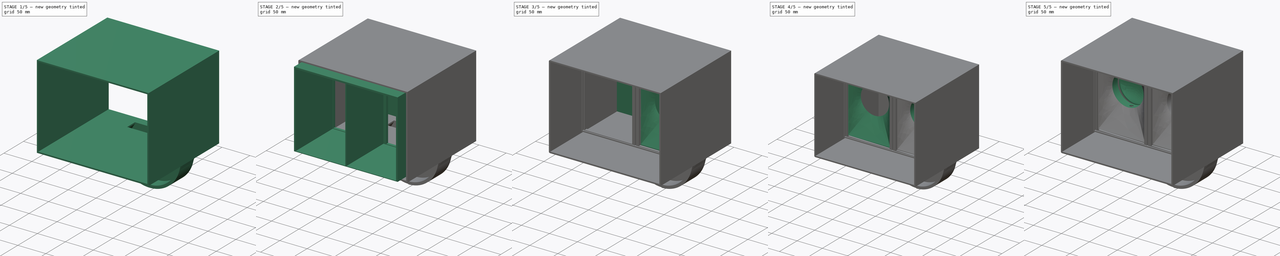
[diagram: build sequence overview — one tinted view per stage of 5, left to right]
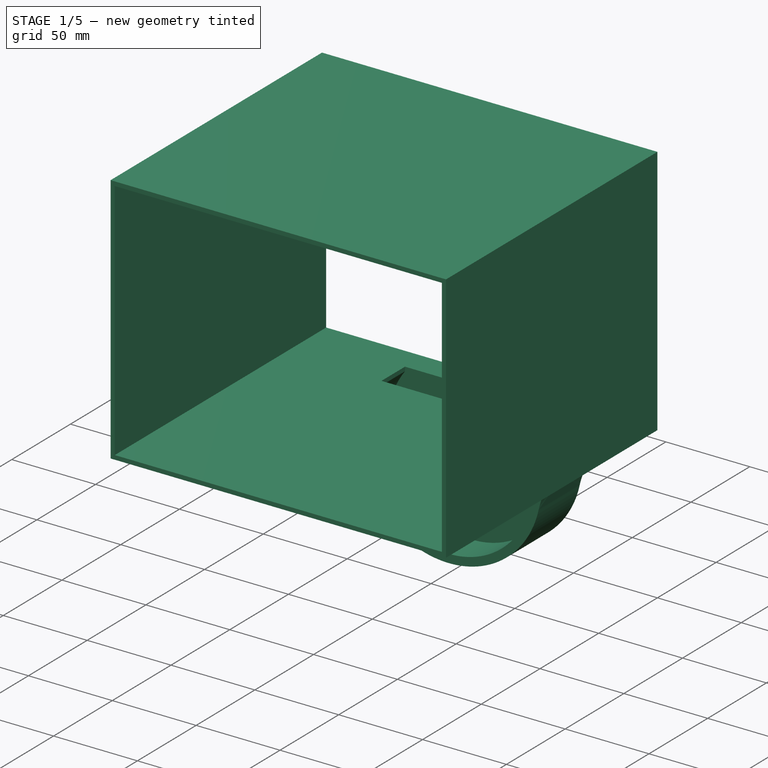
[diagram: stage 1 of 5 — iso view after this stage's code; geometry added in this stage tinted green]
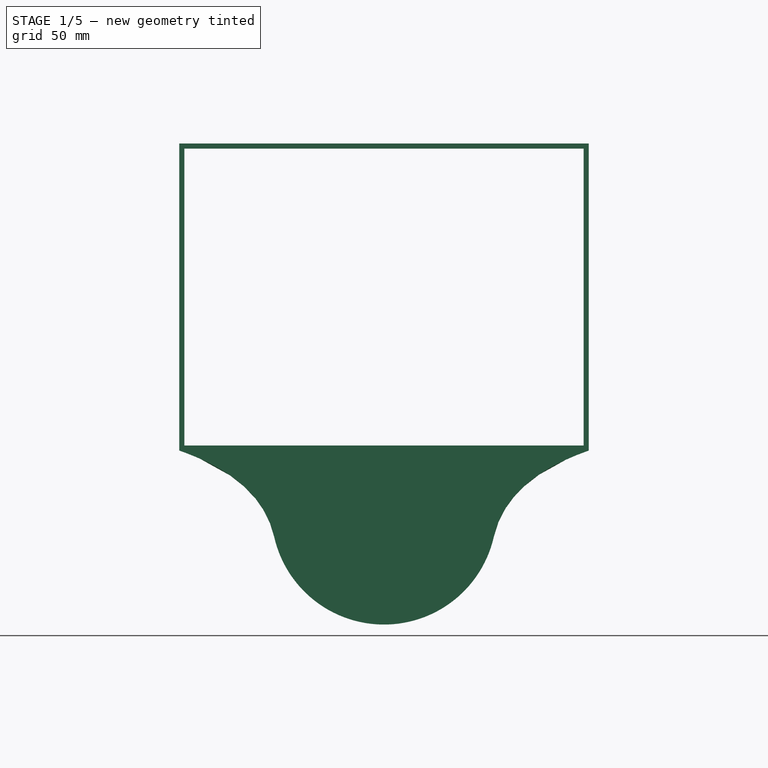
[diagram: stage 1 of 5 — front view after this stage's code; geometry added in this stage tinted green]
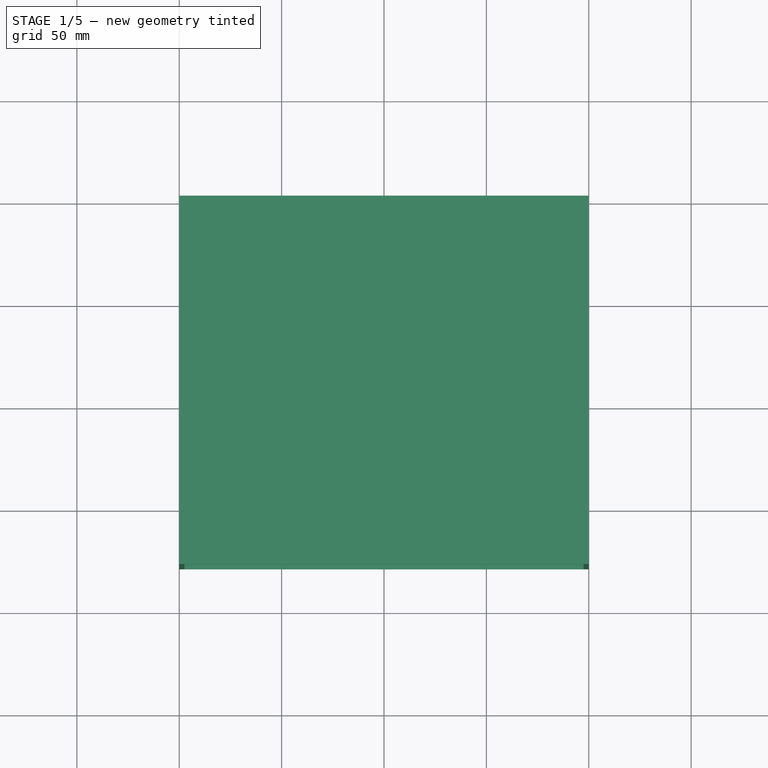
[diagram: stage 1 of 5 — top view after this stage's code; geometry added in this stage tinted green]
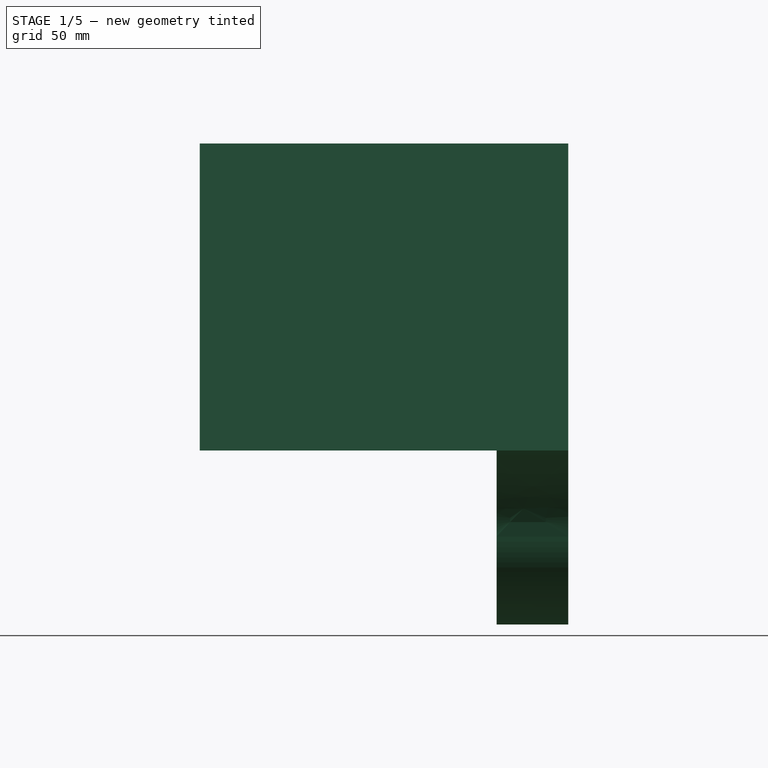
[diagram: stage 1 of 5 — right view after this stage's code; geometry added in this stage tinted green]
FCSTD DOCUMENT  (FreeCAD 0.17R13541 (Git))
Label: OuterComedero
License: All rights reserved
LicenseURL: http://en.wikipedia.org/wiki/All_rights_reserved
objects: Sketcher::SketchObject×30, Part::Extrusion×12, Part::Cut×9, Part::Loft×4, Part::MultiFuse×3, PartDesign::Body×2, Part::Sweep×2, Part::Box×1, Part::FeaturePython×1, Part::Fillet×1
note: 65 computed .brp shape members not serialized (recipe doc carries the construction recipe); baked Part::Feature solids carry a one-line shape summary decoded from their .brp

FEATURE [Sketcher::SketchObject] Sketch  label="paredCom"
  MapMode = 5
  Placement = pos=(0,0,0) rot=(1,0,0;1.5708rad)
  Support = -> [XZ_Plane]
  sketch-geometry (10):
    g0: LineSegment StartX=0 StartY=0 StartZ=0 EndX=200 EndY=0 EndZ=0
    g1: LineSegment StartX=200 StartY=0 StartZ=0 EndX=200 EndY=-150 EndZ=0
    g2: LineSegment StartX=200 StartY=-150 StartZ=0 EndX=0 EndY=-150 EndZ=0
    g3: LineSegment StartX=0 StartY=-150 StartZ=0 EndX=0 EndY=0 EndZ=0
    g4: LineSegment [constr] StartX=100 StartY=0 StartZ=0 EndX=100 EndY=-150 EndZ=0
    g5: LineSegment [constr] StartX=0 StartY=-75 StartZ=0 EndX=200 EndY=-75 EndZ=0
    g6: LineSegment StartX=2.5 StartY=-2.5 StartZ=0 EndX=197.5 EndY=-2.5 EndZ=0
    g7: LineSegment StartX=197.5 StartY=-2.5 StartZ=0 EndX=197.5 EndY=-147.5 EndZ=0
    g8: LineSegment StartX=197.5 StartY=-147.5 StartZ=0 EndX=2.5 EndY=-147.5 EndZ=0
    g9: LineSegment StartX=2.5 StartY=-147.5 StartZ=0 EndX=2.5 EndY=-2.5 EndZ=0
  constraints (31):
    c: Coincident(g0,g1)
    c: Coincident(g1,g2)
    c: Coincident(g2,g3)
    c: Coincident(g3,g0)
    c: Horizontal(g0)
    c: Horizontal(g2)
    c: Vertical(g1)
    c: Vertical(g3)
    c: Coincident(g0,g-1)
    c: DistanceY(g1,g1) = 150
    c: DistanceX(g0,g0) = 200
    c: PointOnObject(g4,g0)
    c: PointOnObject(g4,g2)
    c: Vertical(g4)
    c: DistanceX(g-1,g4) = 100
    c: PointOnObject(g5,g3)
    c: PointOnObject(g5,g1)
    c: Horizontal(g5)
    c: DistanceY(g5,g-1) = 75
    c: Coincident(g6,g7)
    c: Coincident(g7,g8)
    c: Coincident(g8,g9)
    c: Coincident(g9,g6)
    c: Horizontal(g6)
    c: Horizontal(g8)
    c: Vertical(g7)
    c: Vertical(g9)
    c: Symmetric(g6,g7,g5)
    c: Symmetric(g6,g6,g4)
    c: DistanceY(g9,g9) = 145
    c: DistanceX(g6,g6) = 195
FEATURE [Sketcher::SketchObject] Sketch001
  MapMode = 5
  Placement = pos=(0,0,0) rot=(1,0,0;1.5708rad)
  Support = -> [XZ_Plane]
  sketch-geometry (17):
    g0: LineSegment StartX=0 StartY=0 StartZ=0 EndX=200 EndY=0 EndZ=0
    g1: LineSegment StartX=200 StartY=0 StartZ=0 EndX=200 EndY=-150 EndZ=0
    g2: LineSegment StartX=0 StartY=-150 StartZ=0 EndX=0 EndY=0 EndZ=0
    g3: ArcOfCircle CenterX=100 CenterY=-180 CenterZ=0 NormalX=0 NormalY=0 NormalZ=1 AngleXU=0 Radius=55 StartAngle=3.36154 EndAngle=6.06323
    g4: Circle [constr] CenterX=200 CenterY=-150 CenterZ=0 NormalX=0 NormalY=0 NormalZ=1 AngleXU=0 Radius=5
    g5: Circle [constr] CenterX=160 CenterY=-164 CenterZ=0 NormalX=0 NormalY=0 NormalZ=1 AngleXU=0 Radius=5
    g6: Circle [constr] CenterX=153.675 CenterY=-192 CenterZ=0 NormalX=0 NormalY=0 NormalZ=1 AngleXU=0 Radius=5
    g7: BSplineCurve PolesCount=3 KnotsCount=2 Degree=2 IsPeriodic=0
    g8: GeomPoint [constr] X=200 Y=-150 Z=0
    g9: GeomPoint [constr] X=153.675 Y=-192 Z=0
    g10: Circle [constr] CenterX=46.3251 CenterY=-192 CenterZ=0 NormalX=0 NormalY=0 NormalZ=1 AngleXU=0 Radius=4
    g11: Circle [constr] CenterX=40 CenterY=-164 CenterZ=0 NormalX=0 NormalY=0 NormalZ=1 AngleXU=0 Radius=4
    g12: Circle [constr] CenterX=0 CenterY=-150 CenterZ=0 NormalX=0 NormalY=0 NormalZ=1 AngleXU=0 Radius=4
    g13: BSplineCurve PolesCount=3 KnotsCount=2 Degree=2 IsPeriodic=0
    g14: GeomPoint [constr] X=46.3251 Y=-192 Z=0
    g15: GeomPoint [constr] X=0 Y=-150 Z=0
    g16: LineSegment [constr] StartX=100 StartY=-55.3795 StartZ=0 EndX=100 EndY=-177.313 EndZ=0
  constraints (39):
    c: Coincident(g0,g1)
    c: Coincident(g2,g0)
    c: Horizontal(g0)
    c: Vertical(g1)
    c: Vertical(g2)
    c: Coincident(g0,g-1)
    c: DistanceX(g0,g0) = 200
    c: DistanceY(g2,g2) = 150
    c: DistanceX(g-1,g3) = 100
    c: Radius(g3) = 55
    c: DistanceY(g3,g-1) = 180
    c: Coincident(g4,g1)
    c: Radius(g4) = 5
    c: Equal(g4,g5)
    c: Equal(g4,g6)
    c: InternalAlignment(g4,g7)
    c: InternalAlignment(g5,g7)
    c: InternalAlignment(g6,g7)
    c: InternalAlignment(g8,g7)
    c: InternalAlignment(g9,g7)
    c: Radius(g10) = 4
    c: Equal(g10,g11)
    c: Equal(g10,g12)
    c: Coincident(g12,g2)
    c: InternalAlignment(g10,g13)
    c: InternalAlignment(g11,g13)
    c: InternalAlignment(g12,g13)
    c: InternalAlignment(g14,g13)
    c: InternalAlignment(g15,g13)
    c: DistanceX(g5,g1) = 40
    c: Vertical(g16)
    c: DistanceX(g-1,g16) = 100
    c: Symmetric(g5,g11,g16)
    c: Coincident(g3,g10)
    c: Coincident(g3,g6)
    c: DistanceY(g5,g1) = 14
    c: DistanceY(g11,g2) = 14
    c: DistanceY(g3,g2) = 42
    c: DistanceY(g3,g1) = 42
FEATURE [Part::Extrusion] Extrude
  Base = -> Sketch
  Dir = (0,-1,0)
  DirMode = 2
  FaceMakerClass = Part::FaceMakerBullseye
  LengthFwd = 180
  LengthRev = 0
  Solid = true
  Symmetric = false
FEATURE [Sketcher::SketchObject] Sketch003
  MapMode = 5
  Placement = pos=(0,0,0) rot=(1,0,0;1.5708rad)
  Support = -> [XZ_Plane]
  expr: Constraints[2] = Sketch001.Constraints[12]
  expr: Constraints[24] = Sketch001.Constraints[38]
  expr: Constraints[21] = Sketch001.Constraints[35]
  expr: Constraints[22] = Sketch001.Constraints[36]
  expr: Constraints[0] = Sketch001.Constraints[8]
  expr: Constraints[23] = Sketch001.Constraints[37]
  expr: Constraints[10] = Sketch001.Constraints[20]
  expr: Constraints[1] = Sketch001.Constraints[9]
  expr: Constraints[18] = Sketch001.Constraints[29]
  sketch-geometry (14):
    g0: LineSegment StartX=0 StartY=-150 StartZ=0 EndX=200 EndY=-150 EndZ=0
    g1: ArcOfCircle CenterX=100 CenterY=-180 CenterZ=0 NormalX=0 NormalY=0 NormalZ=1 AngleXU=0 Radius=55 StartAngle=3.36154 EndAngle=6.06323
    g2: Circle [constr] CenterX=200 CenterY=-150 CenterZ=0 NormalX=0 NormalY=0 NormalZ=1 AngleXU=0 Radius=5
    g3: Circle [constr] CenterX=160 CenterY=-164 CenterZ=0 NormalX=0 NormalY=0 NormalZ=1 AngleXU=0 Radius=5
    g4: Circle [constr] CenterX=153.675 CenterY=-192 CenterZ=0 NormalX=0 NormalY=0 NormalZ=1 AngleXU=0 Radius=5
    g5: BSplineCurve PolesCount=3 KnotsCount=2 Degree=2 IsPeriodic=0
    g6: GeomPoint [constr] X=200 Y=-150 Z=0
    g7: GeomPoint [constr] X=153.675 Y=-192 Z=0
    g8: Circle [constr] CenterX=46.3251 CenterY=-192 CenterZ=0 NormalX=0 NormalY=0 NormalZ=1 AngleXU=0 Radius=4
    g9: Circle [constr] CenterX=40 CenterY=-164 CenterZ=0 NormalX=0 NormalY=0 NormalZ=1 AngleXU=0 Radius=4
    g10: Circle [constr] CenterX=0 CenterY=-150 CenterZ=0 NormalX=0 NormalY=0 NormalZ=1 AngleXU=0 Radius=4
    g11: BSplineCurve PolesCount=3 KnotsCount=2 Degree=2 IsPeriodic=0
    g12: GeomPoint [constr] X=46.3251 Y=-192 Z=0
    g13: GeomPoint [constr] X=0 Y=-150 Z=0
  constraints (25):
    c: DistanceX(g-1,g1) = 100
    c: Radius(g1) = 55
    c: Radius(g2) = 5
    c: Equal(g2,g3)
    c: Equal(g2,g4)
    c: InternalAlignment(g2,g5)
    c: InternalAlignment(g3,g5)
    c: InternalAlignment(g4,g5)
    c: InternalAlignment(g6,g5)
    c: InternalAlignment(g7,g5)
    c: Radius(g8) = 4
    c: Equal(g8,g9)
    c: Equal(g8,g10)
    c: InternalAlignment(g8,g11)
    c: InternalAlignment(g9,g11)
    c: InternalAlignment(g10,g11)
    c: InternalAlignment(g12,g11)
    c: InternalAlignment(g13,g11)
    c: DistanceX(g3,g2) = 40
    c: Coincident(g1,g8)
    c: Coincident(g1,g4)
    c: DistanceY(g3,g2) = 14
    c: DistanceY(g9,g10) = 14
    c: DistanceY(g1,g10) = 42
    c: DistanceY(g1,g2) = 42
FEATURE [Part::Extrusion] Extrude002
  Base = -> Sketch003
  Dir = (0,-1,0)
  DirMode = 2
  FaceMakerClass = Part::FaceMakerBullseye
  LengthFwd = 35
  LengthRev = 0
  Solid = true
  Symmetric = false
FEATURE [Part::Extrusion] Extrude004
  Base = -> Sketch002
  Dir = (0,-1,0)
  DirMode = 2
  FaceMakerClass = Part::FaceMakerBullseye
  LengthFwd = 20
  LengthRev = 0
  Placement = pos=(0,-15,0) rot=(0,0,1;0rad)
  Solid = true
  Symmetric = false
FEATURE [Part::Cut] Cut
  Base = -> Extrude002
  Tool = -> Extrude004
FEATURE [Sketcher::SketchObject] Sketch004  label="BoolComida"
  AttachmentOffset = pos=(0,0,-147.5) rot=(0,0,1;0rad)
  MapMode = 5
  Placement = pos=(0,0,-147.5) rot=(0,0,1;0rad)
  Support = -> [XY_Plane]
  sketch-geometry (4):
    g0: LineSegment StartX=60 StartY=-35 StartZ=0 EndX=140 EndY=-35 EndZ=0
    g1: LineSegment StartX=140 StartY=-35 StartZ=0 EndX=140 EndY=-15 EndZ=0
    g2: LineSegment StartX=140 StartY=-15 StartZ=0 EndX=60 EndY=-15 EndZ=0
    g3: LineSegment StartX=60 StartY=-15 StartZ=0 EndX=60 EndY=-35 EndZ=0
  constraints (12):
    c: Coincident(g0,g1)
    c: Coincident(g1,g2)
    c: Coincident(g2,g3)
    c: Coincident(g3,g0)
    c: Horizontal(g0)
    c: Horizontal(g2)
    c: Vertical(g1)
    c: Vertical(g3)
    c: DistanceY(g0,g-1) = 35
    c: DistanceX(g-1,g0) = 60
    c: DistanceX(g0,g0) = 80
    c: DistanceY(g3,g3) = 20
FEATURE [Part::Extrusion] Extrude005
  Base = -> Sketch004
  Dir = (0,0,1)
  DirMode = 2
  FaceMakerClass = Part::FaceMakerBullseye
  LengthFwd = 20
  LengthRev = 0
  Placement = pos=(0,0,-6) rot=(0,0,1;0rad)
  Solid = true
  Symmetric = false
FEATURE [Part::Cut] Cut001
  Base = -> Extrude
  Tool = -> Extrude005
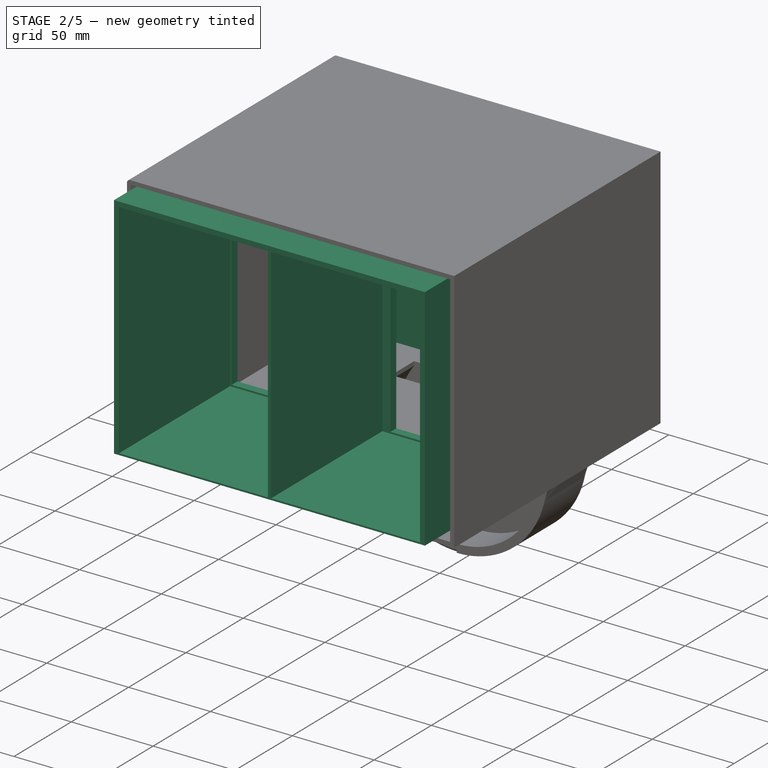
[diagram: stage 2 of 5 — iso view after this stage's code; geometry added in this stage tinted green]
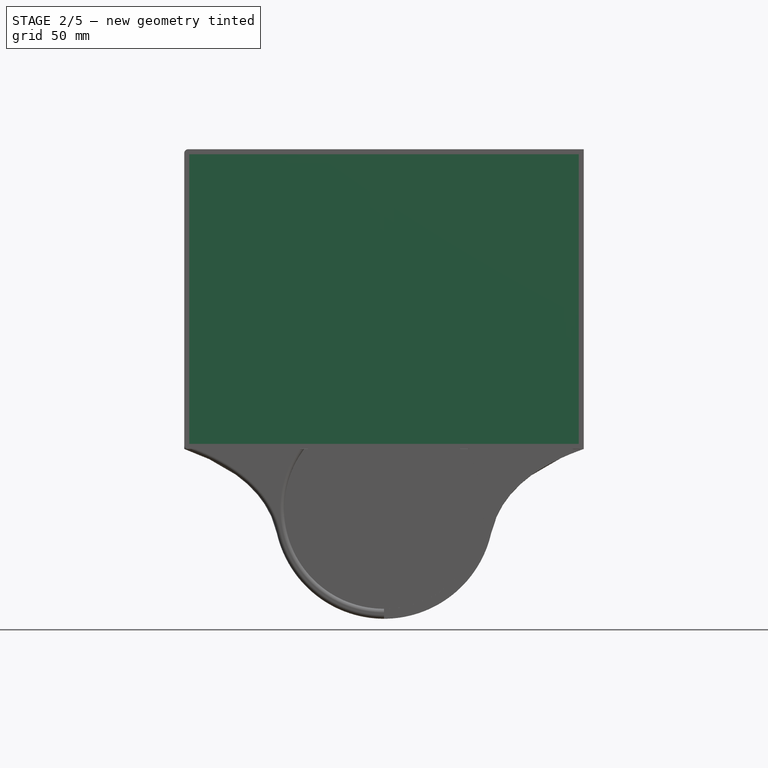
[diagram: stage 2 of 5 — front view after this stage's code; geometry added in this stage tinted green]
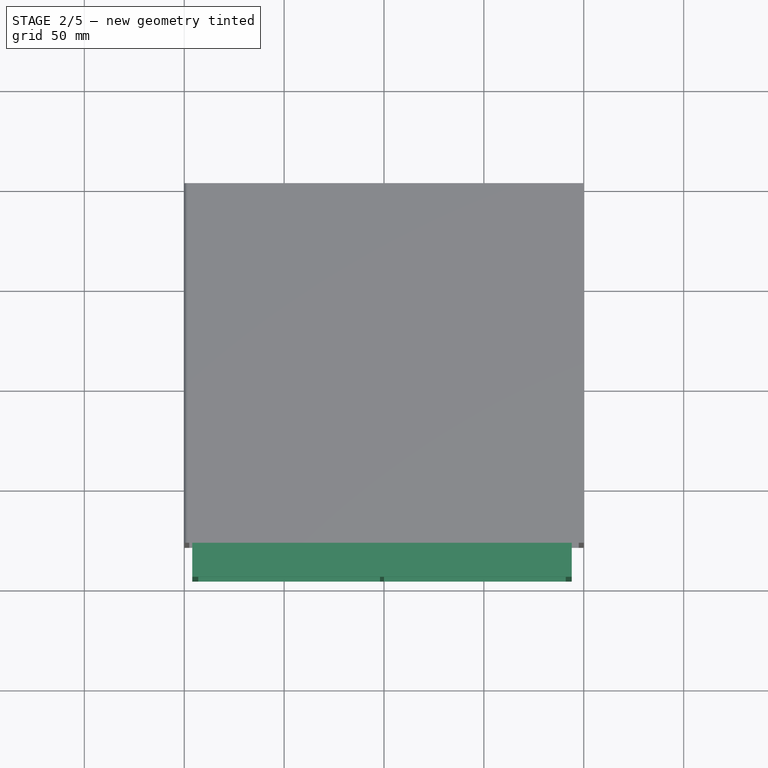
[diagram: stage 2 of 5 — top view after this stage's code; geometry added in this stage tinted green]
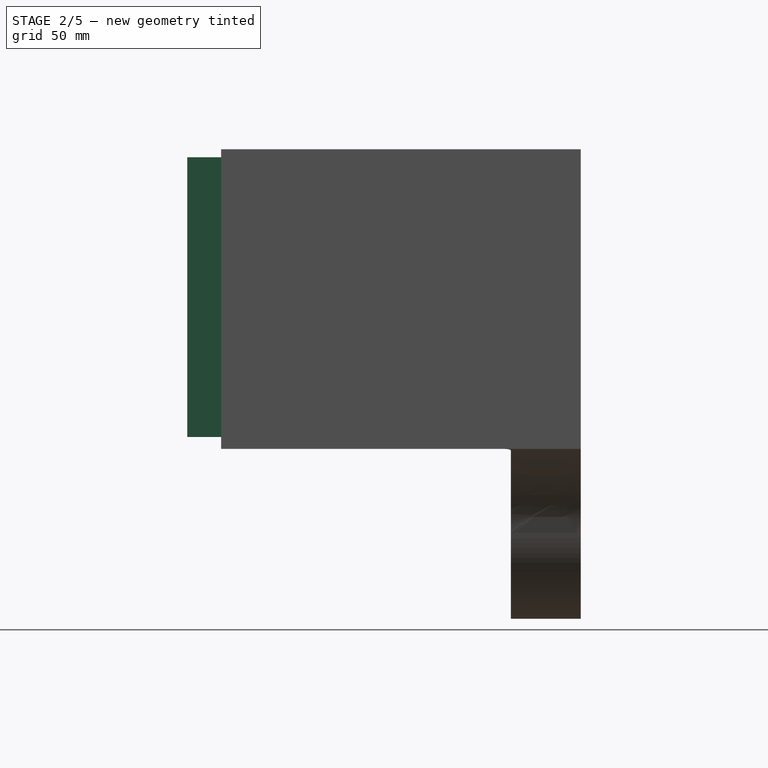
[diagram: stage 2 of 5 — right view after this stage's code; geometry added in this stage tinted green]
FEATURE [Sketcher::SketchObject] Sketch002
  MapMode = 5
  Placement = pos=(0,0,0) rot=(1,0,0;1.5708rad)
  Support = -> [XZ_Plane]
  sketch-geometry (4):
    g0: ArcOfCircle CenterX=100 CenterY=-180 CenterZ=0 NormalX=0 NormalY=0 NormalZ=1 AngleXU=0 Radius=50 StartAngle=2.49809 EndAngle=6.92669
    g1: Circle [constr] CenterX=60 CenterY=-150 CenterZ=0 NormalX=0 NormalY=0 NormalZ=1 AngleXU=0 Radius=1
    g2: LineSegment [constr] StartX=100 StartY=-180 StartZ=0 EndX=100 EndY=-156.67 EndZ=0
    g3: LineSegment StartX=60 StartY=-150 StartZ=0 EndX=140 EndY=-150 EndZ=0
  constraints (10):
    c: DistanceX(g-1,g0) = 100
    c: DistanceY(g0,g-1) = 180
    c: Radius(g0) = 50
    c: Coincident(g0,g1)
    c: Vertical(g2)
    c: Coincident(g2,g0)
    c: Horizontal(g3)
    c: DistanceY(g3,g-1) = 150
    c: Coincident(g0,g3)
    c: Coincident(g0,g3)
FEATURE [Part::Extrusion] Extrude001
  Base = -> Sketch001
  Dir = (0,-1,0)
  DirMode = 2
  FaceMakerClass = Part::FaceMakerBullseye
  LengthFwd = 2
  LengthRev = 0
  Solid = true
  Symmetric = false
FEATURE [Sketcher::SketchObject] Sketch005
  MapMode = 5
  Placement = pos=(0,0,0) rot=(1,0,0;1.5708rad)
  Support = -> [XZ_Plane001]
  sketch-geometry (12):
    g0: LineSegment StartX=5 StartY=-5 StartZ=0 EndX=195 EndY=-5 EndZ=0
    g1: LineSegment StartX=195 StartY=-5 StartZ=0 EndX=195 EndY=-145 EndZ=0
    g2: LineSegment StartX=195 StartY=-145 StartZ=0 EndX=5 EndY=-145 EndZ=0
    g3: LineSegment StartX=5 StartY=-145 StartZ=0 EndX=5 EndY=-5 EndZ=0
    g4: LineSegment StartX=6 StartY=-6 StartZ=0 EndX=100.5 EndY=-6 EndZ=0
    g5: LineSegment StartX=194 StartY=-6 StartZ=0 EndX=194 EndY=-144 EndZ=0
    g6: LineSegment StartX=194 StartY=-144 StartZ=0 EndX=101.5 EndY=-144 EndZ=0
    g7: LineSegment StartX=6 StartY=-144 StartZ=0 EndX=6 EndY=-6 EndZ=0
    g8: LineSegment StartX=101.5 StartY=-6 StartZ=0 EndX=101.5 EndY=-144 EndZ=0
    g9: LineSegment StartX=100.5 StartY=-144 StartZ=0 EndX=100.5 EndY=-6 EndZ=0
    g10: LineSegment StartX=100 StartY=-144 StartZ=0 EndX=6 EndY=-144 EndZ=0
    g11: LineSegment StartX=101.5 StartY=-6 StartZ=0 EndX=194 EndY=-6 EndZ=0
  constraints (34):
    c: Coincident(g0,g1)
    c: Coincident(g1,g2)
    c: Coincident(g2,g3)
    c: Coincident(g3,g0)
    c: Horizontal(g0)
    c: Horizontal(g2)
    c: Vertical(g1)
    c: Vertical(g3)
    c: DistanceX(g0,g0) = 190
    c: DistanceY(g3,g3) = 140
    c: Coincident(g11,g5)
    c: Coincident(g5,g6)
    c: Coincident(g10,g7)
    c: Coincident(g7,g4)
    c: Horizontal(g4)
    c: Horizontal(g6)
    c: Vertical(g5)
    c: Vertical(g7)
    c: DistanceX(g4,g11) = 188
    c: DistanceY(g7,g7) = 138
    c: DistanceX(g-1,g0) = 5
    c: DistanceY(g0,g-1) = 5
    c: DistanceX(g0,g4) = 1
    c: DistanceY(g4,g0) = 1
    c: Vertical(g8)
    c: Vertical(g9)
    c: PointOnObject(g9,g4)
    c: DistanceX(g4,g9) = 94.5
    c: DistanceX(g9,g8) = 1
    c: Coincident(g6,g8)
    c: Tangent(g6,g10)
    c: PointOnObject(g4,g9)
    c: Tangent(g4,g11)
    c: PointOnObject(g11,g8)
FEATURE [PartDesign::Body] Body001  label="MecanismoInterior"
  Group = -> [Sketch005]
  Origin = -> Origin001
FEATURE [Sketcher::SketchObject] Sketch006  label="cajonBooleano"
  MapMode = 5
  Placement = pos=(0,0,0) rot=(1,0,0;1.5708rad)
  sketch-geometry (12):
    g0: LineSegment StartX=5 StartY=-5 StartZ=0 EndX=195 EndY=-5 EndZ=0
    g1: LineSegment StartX=195 StartY=-5 StartZ=0 EndX=195 EndY=-145 EndZ=0
    g2: LineSegment StartX=195 StartY=-145 StartZ=0 EndX=5 EndY=-145 EndZ=0
    g3: LineSegment StartX=5 StartY=-145 StartZ=0 EndX=5 EndY=-5 EndZ=0
    g4: LineSegment StartX=8 StartY=-8 StartZ=0 EndX=99 EndY=-8 EndZ=0
    g5: LineSegment StartX=192 StartY=-8 StartZ=0 EndX=192 EndY=-144 EndZ=0
    g6: LineSegment StartX=192 StartY=-144 StartZ=0 EndX=101 EndY=-144 EndZ=0
    g7: LineSegment StartX=8 StartY=-144 StartZ=0 EndX=8 EndY=-8 EndZ=0
    g8: LineSegment StartX=101 StartY=-8 StartZ=0 EndX=101 EndY=-144 EndZ=0
    g9: LineSegment StartX=99 StartY=-144 StartZ=0 EndX=99 EndY=-8 EndZ=0
    g10: LineSegment StartX=99 StartY=-144 StartZ=0 EndX=8 EndY=-144 EndZ=0
    g11: LineSegment StartX=101 StartY=-8 StartZ=0 EndX=192 EndY=-8 EndZ=0
  constraints (35):
    c: Coincident(g0,g1)
    c: Coincident(g1,g2)
    c: Coincident(g2,g3)
    c: Coincident(g3,g0)
    c: Horizontal(g0)
    c: Horizontal(g2)
    c: Vertical(g1)
    c: Vertical(g3)
    c: DistanceX(g0,g0) = 190
    c: DistanceY(g3,g3) = 140
    c: Coincident(g11,g5)
    c: Coincident(g5,g6)
    c: Coincident(g10,g7)
    c: Coincident(g7,g4)
    c: Horizontal(g4)
    c: Horizontal(g6)
    c: Vertical(g5)
    c: Vertical(g7)
    c: DistanceX(g4,g11) = 184
    c: DistanceY(g7,g7) = 136
    c: DistanceX(g-1,g0) = 5
    c: DistanceY(g0,g-1) = 5
    c: DistanceX(g0,g4) = 3
    c: DistanceY(g4,g0) = 3
    c: Vertical(g8)
    c: Vertical(g9)
    c: PointOnObject(g9,g4)
    c: DistanceX(g4,g9) = 91
    c: Coincident(g6,g8)
    c: Tangent(g6,g10)
    c: PointOnObject(g4,g9)
    c: Tangent(g4,g11)
    c: Coincident(g9,g10)
    c: Coincident(g11,g8)
    c: DistanceX(g4,g8) = 2
FEATURE [Part::Extrusion] Extrude006  label="shellCajon"
  Base = -> Sketch005
  Dir = (0,-1,0)
  DirMode = 2
  FaceMakerClass = Part::FaceMakerBullseye
  LengthFwd = 100
  LengthRev = 0
  Placement = pos=(0,-100,0) rot=(0,0,1;0rad)
  Solid = false
  Symmetric = false
FEATURE [Part::Extrusion] Extrude007  label="cajonBooleano001"
  Base = -> Sketch006
  Dir = (0,-1,0)
  DirMode = 2
  FaceMakerClass = Part::FaceMakerBullseye
  LengthFwd = 100
  LengthRev = 0
  Placement = pos=(-1,-97,1) rot=(0,0,1;0rad)
  Solid = true
  Symmetric = false
FEATURE [Part::MultiFuse] Fusion
  Shapes = -> [Extrude001,Cut001,Cut]
FEATURE [Sketcher::SketchObject] Sketch018  label="cajonHold001"
  MapMode = 5
  Placement = pos=(0,0,0) rot=(1,0,0;1.5708rad)
  sketch-geometry (12):
    g0: LineSegment StartX=2 StartY=-2 StartZ=0 EndX=196 EndY=-2 EndZ=0
    g1: LineSegment StartX=196 StartY=-2 StartZ=0 EndX=196 EndY=-146 EndZ=0
    g2: LineSegment StartX=196 StartY=-146 StartZ=0 EndX=2 EndY=-146 EndZ=0
    g3: LineSegment StartX=2 StartY=-146 StartZ=0 EndX=2 EndY=-2 EndZ=0
    g4: LineSegment StartX=8 StartY=-4.5 StartZ=0 EndX=95 EndY=-4.5 EndZ=0
    g5: LineSegment StartX=95 StartY=-4.5 StartZ=0 EndX=95 EndY=-142.5 EndZ=0
    g6: LineSegment StartX=95 StartY=-142.5 StartZ=0 EndX=8 EndY=-142.5 EndZ=0
    g7: LineSegment StartX=8 StartY=-142.5 StartZ=0 EndX=8 EndY=-4.5 EndZ=0
    g8: LineSegment StartX=103 StartY=-4.5 StartZ=0 EndX=190 EndY=-4.5 EndZ=0
    g9: LineSegment StartX=190 StartY=-4.5 StartZ=0 EndX=190 EndY=-142.5 EndZ=0
    g10: LineSegment StartX=190 StartY=-142.5 StartZ=0 EndX=103 EndY=-142.5 EndZ=0
    g11: LineSegment StartX=103 StartY=-142.5 StartZ=0 EndX=103 EndY=-4.5 EndZ=0
  constraints (36):
    c: Coincident(g0,g1)
    c: Coincident(g1,g2)
    c: Coincident(g2,g3)
    c: Coincident(g3,g0)
    c: Horizontal(g0)
    c: Horizontal(g2)
    c: Vertical(g1)
    c: Vertical(g3)
    c: DistanceX(g-1,g0) = 2
    c: DistanceY(g0,g-1) = 2
    c: DistanceX(g2,g2) = 194
    c: DistanceY(g3,g3) = 144
    c: Coincident(g4,g5)
    c: Coincident(g5,g6)
    c: Coincident(g6,g7)
    c: Coincident(g7,g4)
    c: Horizontal(g4)
    c: Horizontal(g6)
    c: Vertical(g5)
    c: Vertical(g7)
    c: Coincident(g8,g9)
    c: Coincident(g9,g10)
    c: Coincident(g10,g11)
    c: Coincident(g11,g8)
    c: Horizontal(g8)
    c: Horizontal(g10)
    c: Vertical(g9)
    c: Vertical(g11)
    c: DistanceX(g4,g4) = 87
    c: DistanceX(g8,g8) = 87
    c: DistanceY(g7,g7) = 138
    c: DistanceY(g9,g9) = 138
    c: DistanceX(g0,g4) = 6
    c: DistanceX(g8,g0) = 6
    c: DistanceY(g4,g0) = 2.5
    c: DistanceY(g8,g0) = 2.5
FEATURE [Sketcher::SketchObject] Sketch019  label="circ izq in"
  MapMode = 5
  Placement = pos=(0,0,0) rot=(1,0,0;1.5708rad)
  Support = -> [XZ_Plane]
  sketch-geometry (1):
    g0: Circle CenterX=50 CenterY=-75 CenterZ=0 NormalX=0 NormalY=0 NormalZ=1 AngleXU=0 Radius=28
  constraints (3):
    c: Radius(g0) = 28
    c: DistanceY(g0,g-1) = 75
    c: DistanceX(g-1,g0) = 50
FEATURE [Part::Extrusion] Extrude012  label="cajonHold003"
  Base = -> Sketch009
  Dir = (0,-1,0)
  DirMode = 2
  FaceMakerClass = Part::FaceMakerBullseye
  LengthFwd = 5
  LengthRev = 0
  Placement = pos=(0,-95,0) rot=(0,0,1;0rad)
  Solid = true
  Symmetric = false
FEATURE [Part::Box] Box  label="Cube"
  AttacherType = Attacher::AttachEngine3D
  Height = 250
  Length = 100
  Placement = pos=(0,-200,-240) rot=(0,0,1;0rad)
  Width = 200
FEATURE [Part::Cut] Cut010
  Base = -> Fusion
  Tool = -> Box
FEATURE [Part::Fillet] Fillet
  Base = -> Fusion
  Edges = 9 edges r=2: [Edge14,Edge19,Edge28,Edge30,Edge31,Edge33,Edge36,Edge37,Edge46]
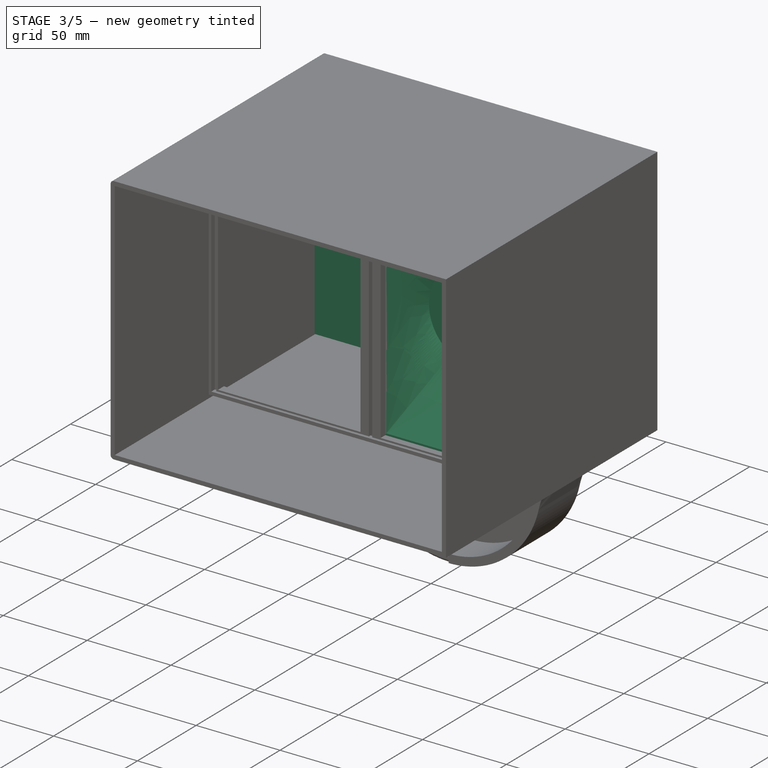
[diagram: stage 3 of 5 — iso view after this stage's code; geometry added in this stage tinted green]
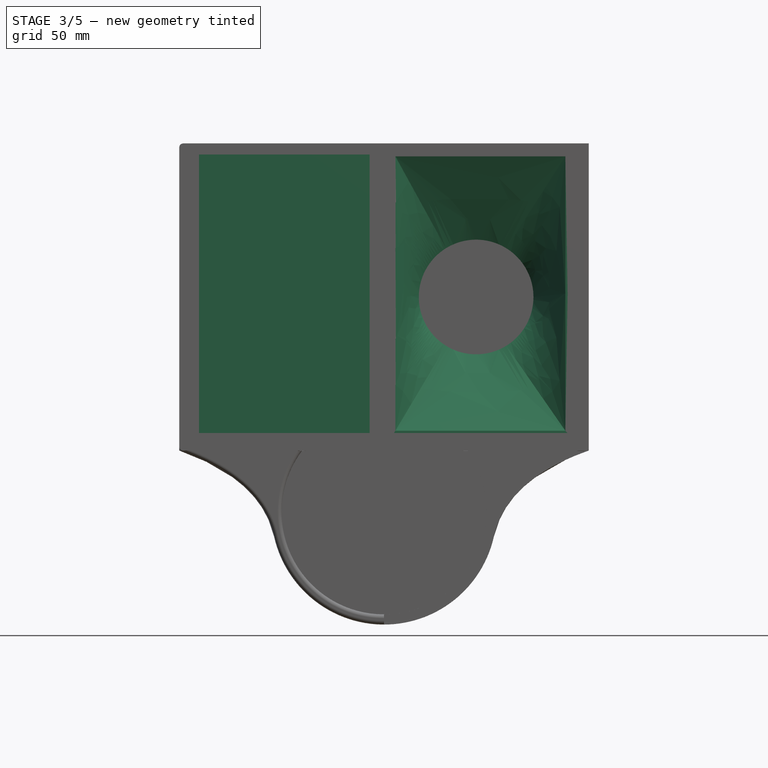
[diagram: stage 3 of 5 — front view after this stage's code; geometry added in this stage tinted green]
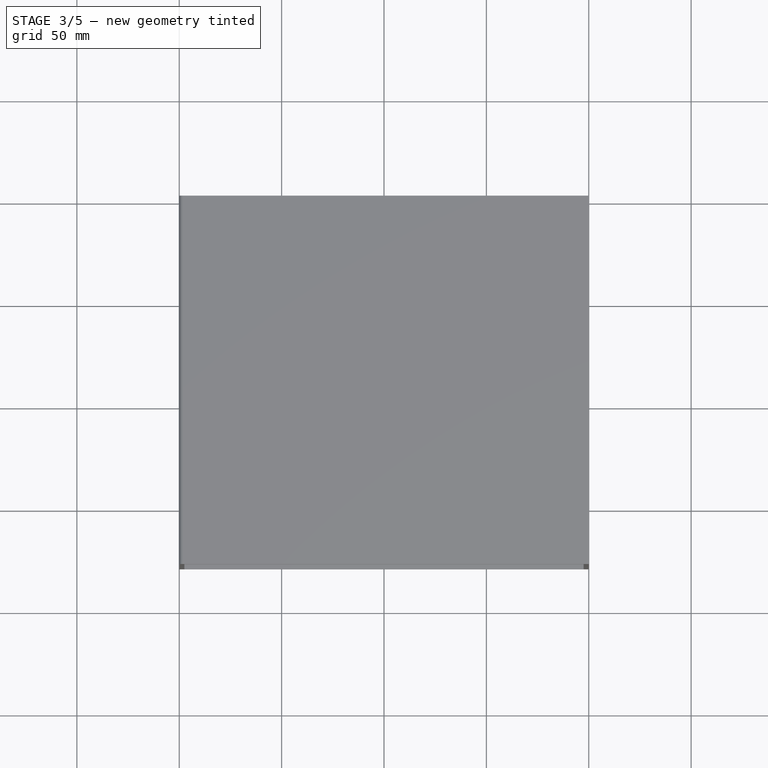
[diagram: stage 3 of 5 — top view after this stage's code; geometry added in this stage tinted green]
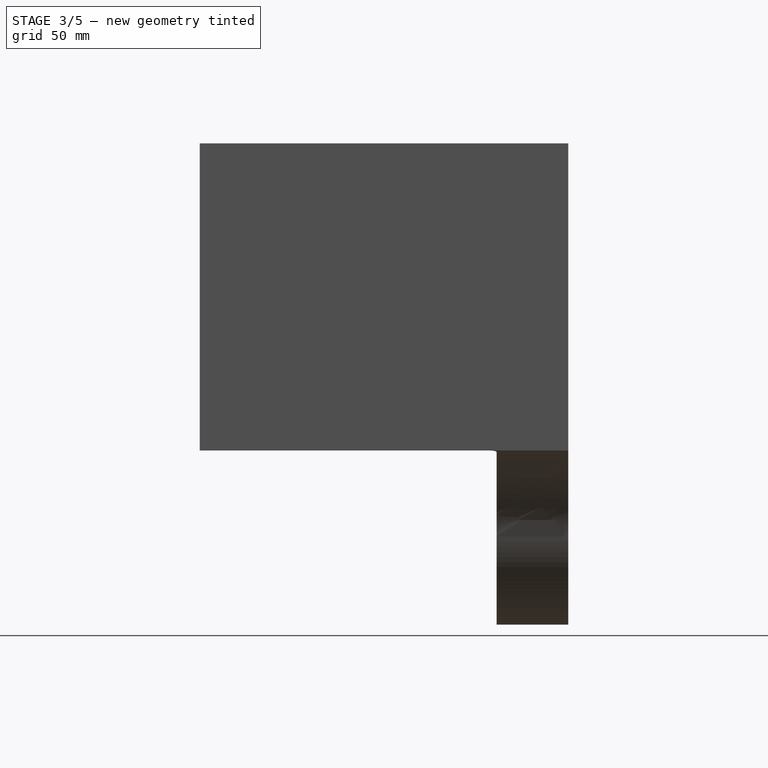
[diagram: stage 3 of 5 — right view after this stage's code; geometry added in this stage tinted green]
FEATURE [Sketcher::SketchObject] Sketch016  label="circ izq out"
  MapMode = 5
  Placement = pos=(0,0,0) rot=(1,0,0;1.5708rad)
  Support = -> [XZ_Plane]
  sketch-geometry (1):
    g0: Circle CenterX=50 CenterY=-75 CenterZ=0 NormalX=0 NormalY=0 NormalZ=1 AngleXU=0 Radius=30
  constraints (3):
    c: Radius(g0) = 30
    c: DistanceY(g0,g-1) = 75
    c: DistanceX(g-1,g0) = 50
FEATURE [Part::Loft] Loft
  Closed = false
  MaxDegree = 5
  Ruled = false
  Sections = -> [Sketch016,Sketch010]
  Solid = true
FEATURE [Sketcher::SketchObject] Sketch020  label="c hold izq001"
  AttachmentOffset = pos=(0,0,20) rot=(0,0,1;0rad)
  MapMode = 5
  Placement = pos=(0,-20,-2e-12) rot=(1,0,0;1.5708rad)
  Support = -> [XZ_Plane006]
  expr: Constraints[9] = Sketch009.Constraints[30]
  expr: Constraints[8] = Sketch009.Constraints[28]
  sketch-geometry (4):
    g0: LineSegment StartX=8.67168 StartY=-5.41924 StartZ=0 EndX=93.6717 EndY=-5.41924 EndZ=0
    g1: LineSegment StartX=93.6717 StartY=-5.41924 StartZ=0 EndX=93.6717 EndY=-141.419 EndZ=0
    g2: LineSegment StartX=93.6717 StartY=-141.419 StartZ=0 EndX=8.67168 EndY=-141.419 EndZ=0
    g3: LineSegment StartX=8.67168 StartY=-141.419 StartZ=0 EndX=8.67168 EndY=-5.41924 EndZ=0
  constraints (10):
    c: Coincident(g0,g1)
    c: Coincident(g1,g2)
    c: Coincident(g2,g3)
    c: Coincident(g3,g0)
    c: Horizontal(g0)
    c: Horizontal(g2)
    c: Vertical(g1)
    c: Vertical(g3)
    c: DistanceX(g0,g0) = 85
    c: DistanceY(g3,g3) = 136
FEATURE [Sketcher::SketchObject] Sketch022  label="circ izq out001"
  MapMode = 5
  Placement = pos=(0,0,0) rot=(1,0,0;1.5708rad)
  Support = -> [XZ_Plane006]
  sketch-geometry (1):
    g0: Circle CenterX=50 CenterY=-75 CenterZ=0 NormalX=0 NormalY=0 NormalZ=1 AngleXU=0 Radius=30
  constraints (3):
    c: Radius(g0) = 30
    c: DistanceY(g0,g-1) = 75
    c: DistanceX(g-1,g0) = 50
FEATURE [Part::Loft] Loft002
  Closed = false
  MaxDegree = 5
  Ruled = false
  Sections = -> [Sketch022,Sketch020]
  Solid = true
FEATURE [Sketcher::SketchObject] Sketch023  label="circ izq in001"
  MapMode = 5
  Placement = pos=(0,0,0) rot=(1,0,0;1.5708rad)
  Support = -> [XZ_Plane006]
  sketch-geometry (1):
    g0: Circle CenterX=50 CenterY=-75 CenterZ=0 NormalX=0 NormalY=0 NormalZ=1 AngleXU=0 Radius=28
  constraints (3):
    c: Radius(g0) = 28
    c: DistanceY(g0,g-1) = 75
    c: DistanceX(g-1,g0) = 50
FEATURE [Part::Cut] Cut008
  Base = -> Extrude012
  Placement = pos=(0,0,0.580761) rot=(0,0,1;0rad)
  Tool = -> Extrude007
FEATURE [Sketcher::SketchObject] Sketch028  label="cajonHold004"
  MapMode = 5
  Placement = pos=(0,0,0) rot=(1,0,0;1.5708rad)
  Support = -> [XZ_Plane008]
  sketch-geometry (12):
    g0: LineSegment StartX=2 StartY=-2 StartZ=0 EndX=196 EndY=-2 EndZ=0
    g1: LineSegment StartX=196 StartY=-2 StartZ=0 EndX=196 EndY=-146 EndZ=0
    g2: LineSegment StartX=196 StartY=-146 StartZ=0 EndX=2 EndY=-146 EndZ=0
    g3: LineSegment StartX=2 StartY=-146 StartZ=0 EndX=2 EndY=-2 EndZ=0
    g4: LineSegment StartX=8 StartY=-6 StartZ=0 EndX=93 EndY=-6 EndZ=0
    g5: LineSegment StartX=93 StartY=-6 StartZ=0 EndX=93 EndY=-142 EndZ=0
    g6: LineSegment StartX=93 StartY=-142 StartZ=0 EndX=8 EndY=-142 EndZ=0
    g7: LineSegment StartX=8 StartY=-142 StartZ=0 EndX=8 EndY=-6 EndZ=0
    g8: LineSegment StartX=105 StartY=-6 StartZ=0 EndX=190 EndY=-6 EndZ=0
    g9: LineSegment StartX=190 StartY=-6 StartZ=0 EndX=190 EndY=-142 EndZ=0
    g10: LineSegment StartX=190 StartY=-142 StartZ=0 EndX=105 EndY=-142 EndZ=0
    g11: LineSegment StartX=105 StartY=-142 StartZ=0 EndX=105 EndY=-6 EndZ=0
  constraints (36):
    c: Coincident(g0,g1)
    c: Coincident(g1,g2)
    c: Coincident(g2,g3)
    c: Coincident(g3,g0)
    c: Horizontal(g0)
    c: Horizontal(g2)
    c: Vertical(g1)
    c: Vertical(g3)
    c: DistanceX(g-1,g0) = 2
    c: DistanceY(g0,g-1) = 2
    c: DistanceX(g2,g2) = 194
    c: DistanceY(g3,g3) = 144
    c: Coincident(g4,g5)
    c: Coincident(g5,g6)
    c: Coincident(g6,g7)
    c: Coincident(g7,g4)
    c: Horizontal(g4)
    c: Horizontal(g6)
    c: Vertical(g5)
    c: Vertical(g7)
    c: Coincident(g8,g9)
    c: Coincident(g9,g10)
    c: Coincident(g10,g11)
    c: Coincident(g11,g8)
    c: Horizontal(g8)
    c: Horizontal(g10)
    c: Vertical(g9)
    c: Vertical(g11)
    c: DistanceX(g4,g4) = 85
    c: DistanceX(g8,g8) = 85
    c: DistanceY(g7,g7) = 136
    c: DistanceY(g9,g9) = 136
    c: DistanceX(g0,g4) = 6
    c: DistanceX(g8,g0) = 6
    c: DistanceY(g4,g0) = 4
    c: DistanceY(g8,g0) = 4
FEATURE [Sketcher::SketchObject] Sketch029  label="c hold izq in002"
  AttachmentOffset = pos=(0,0,20) rot=(0,0,1;0rad)
  MapMode = 5
  Placement = pos=(0,-20,-2e-12) rot=(1,0,0;1.5708rad)
  Support = -> [XZ_Plane008]
  sketch-geometry (4):
    g0: LineSegment StartX=10.5706 StartY=-6.33848 StartZ=0 EndX=93.5706 EndY=-6.33848 EndZ=0
    g1: LineSegment StartX=93.5706 StartY=-6.33848 StartZ=0 EndX=93.5706 EndY=-140.338 EndZ=0
    g2: LineSegment StartX=93.5706 StartY=-140.338 StartZ=0 EndX=10.5706 EndY=-140.338 EndZ=0
    g3: LineSegment StartX=10.5706 StartY=-140.338 StartZ=0 EndX=10.5706 EndY=-6.33848 EndZ=0
  constraints (10):
    c: Coincident(g0,g1)
    c: Coincident(g1,g2)
    c: Coincident(g2,g3)
    c: Coincident(g3,g0)
    c: Horizontal(g0)
    c: Horizontal(g2)
    c: Vertical(g1)
    c: Vertical(g3)
    c: DistanceY(g3,g3) = 134
    c: DistanceX(g0,g0) = 83
FEATURE [Part::Loft] Loft003
  Closed = false
  MaxDegree = 5
  Placement = pos=(-1,0,0) rot=(0,0,1;0rad)
  Ruled = false
  Sections = -> [Sketch019,Sketch029]
  Solid = true
FEATURE [Part::Cut] Cut007  label="LoftCortao001"
  Base = -> Loft002
  Placement = pos=(96,-76,0) rot=(0,0,1;0rad)
  Tool = -> Loft003
FEATURE [Sketcher::SketchObject] Sketch030  label="c hold dcha001"
  AttachmentOffset = pos=(-121,0,20) rot=(0,0,1;0rad)
  MapMode = 5
  Placement = pos=(-121,-20,-2e-12) rot=(1,0,0;1.5708rad)
  Support = -> [XZ_Plane008]
  sketch-geometry (4):
    g0: LineSegment StartX=132.028 StartY=-6.33848 StartZ=0 EndX=215.028 EndY=-6.33848 EndZ=0
    g1: LineSegment StartX=215.028 StartY=-6.33848 StartZ=0 EndX=215.028 EndY=-140.338 EndZ=0
    g2: LineSegment StartX=215.028 StartY=-140.338 StartZ=0 EndX=132.028 EndY=-140.338 EndZ=0
    g3: LineSegment StartX=132.028 StartY=-140.338 StartZ=0 EndX=132.028 EndY=-6.33848 EndZ=0
  constraints (10):
    c: Coincident(g0,g1)
    c: Coincident(g1,g2)
    c: Coincident(g2,g3)
    c: Coincident(g3,g0)
    c: Horizontal(g0)
    c: Horizontal(g2)
    c: Vertical(g1)
    c: Vertical(g3)
    c: DistanceX(g0,g0) = 83
    c: DistanceY(g1,g1) = 134
FEATURE [Part::Loft] Loft001
  Closed = false
  MaxDegree = 5
  Ruled = false
  Sections = -> [Sketch030,Sketch019]
  Solid = true
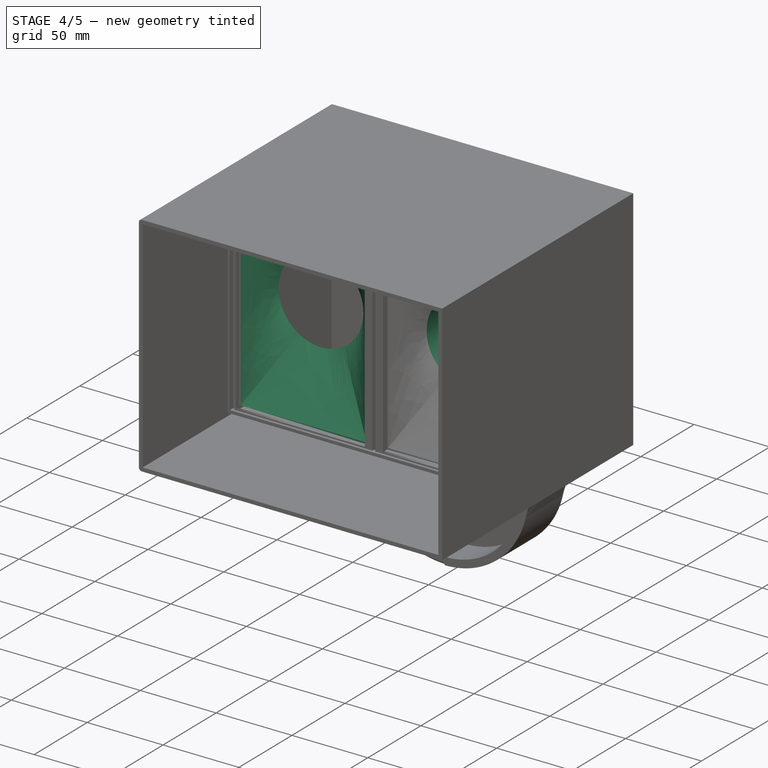
[diagram: stage 4 of 5 — iso view after this stage's code; geometry added in this stage tinted green]
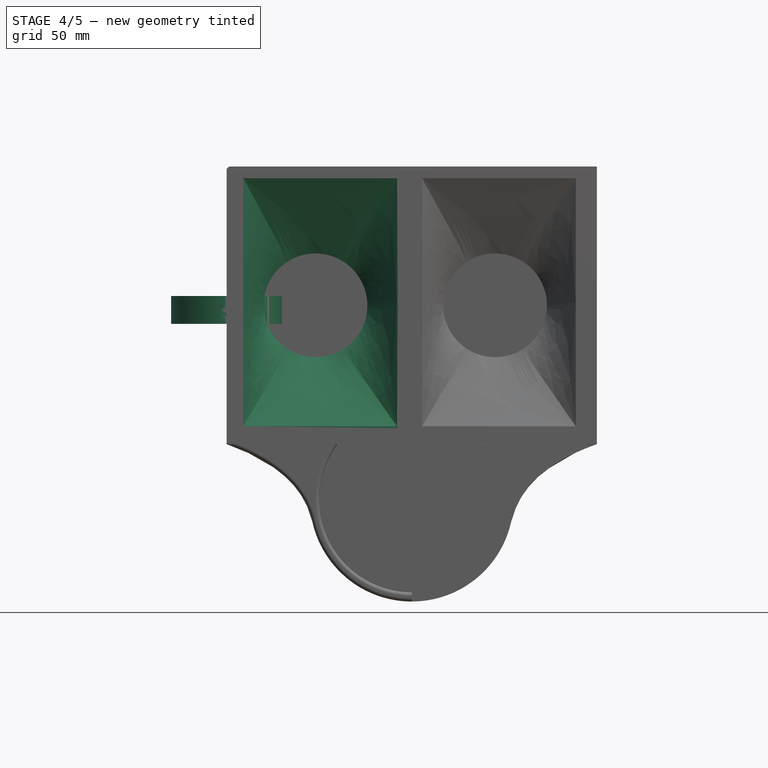
[diagram: stage 4 of 5 — front view after this stage's code; geometry added in this stage tinted green]
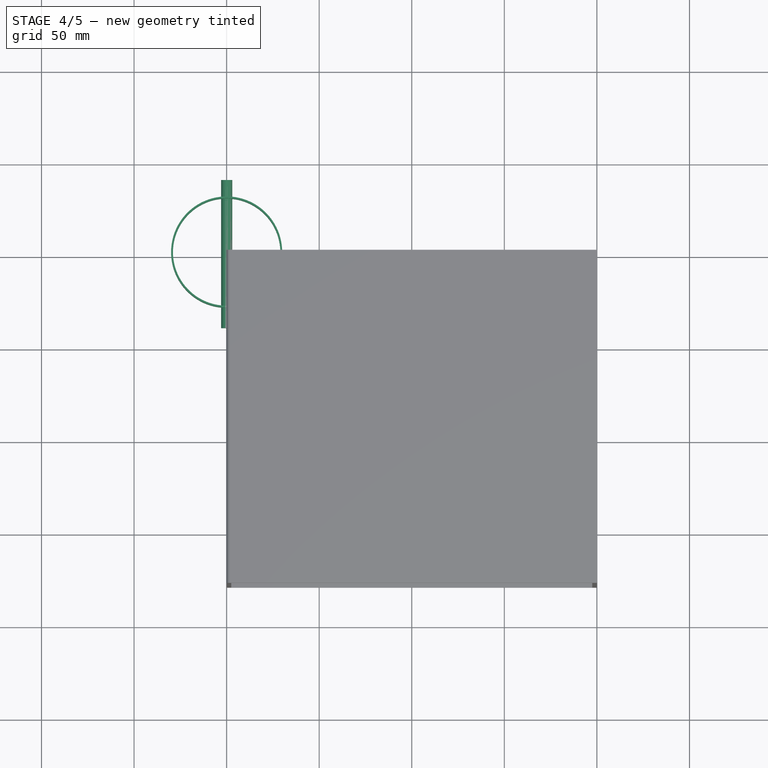
[diagram: stage 4 of 5 — top view after this stage's code; geometry added in this stage tinted green]
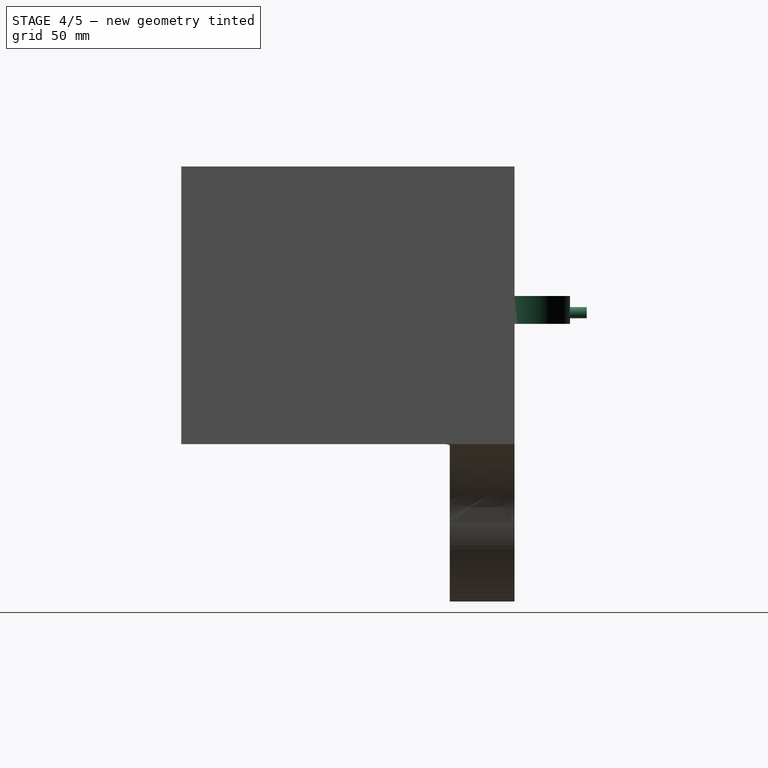
[diagram: stage 4 of 5 — right view after this stage's code; geometry added in this stage tinted green]
FEATURE [Sketcher::SketchObject] Sketch007  label="sweepLine"
  MapMode = 5
  Placement = pos=(0,0,0) rot=(0.57735,0.57735,0.57735;2.0944rad)
  Support = -> [YZ_Plane]
  sketch-geometry (6):
    g0: Circle [constr] CenterX=-59.3381 CenterY=-98.0609 CenterZ=0 NormalX=0 NormalY=0 NormalZ=1 AngleXU=0 Radius=6.7218
    g1: Circle [constr] CenterX=-31.2351 CenterY=-113.881 CenterZ=0 NormalX=0 NormalY=0 NormalZ=1 AngleXU=0 Radius=6.7218
    g2: Circle [constr] CenterX=-25.8169 CenterY=-145.399 CenterZ=0 NormalX=0 NormalY=0 NormalZ=1 AngleXU=0 Radius=6.65458
    g3: BSplineCurve PolesCount=3 KnotsCount=2 Degree=2 IsPeriodic=0
    g4: GeomPoint [constr] X=-59.3381 Y=-98.0609 Z=0
    g5: GeomPoint [constr] X=-25.8169 Y=-145.399 Z=0
  constraints (6):
    c: Equal(g0,g1)
    c: InternalAlignment(g0,g3)
    c: InternalAlignment(g1,g3)
    c: InternalAlignment(g2,g3)
    c: InternalAlignment(g4,g3)
    c: InternalAlignment(g5,g3)
FEATURE [Sketcher::SketchObject] Sketch008
  AttachmentOffset = pos=(0,-60,60) rot=(1,0,0;0rad)
  MapMode = 5
  Placement = pos=(0,-60,-60) rot=(1,0,0;1.5708rad)
  Support = -> [XZ_Plane]
  sketch-geometry (4):
    g0: LineSegment StartX=67.4775 StartY=9.3831 StartZ=0 EndX=126.522 EndY=9.3831 EndZ=0
    g1: LineSegment StartX=130.025 StartY=-41.5462 StartZ=0 EndX=63.9749 EndY=-41.5462 EndZ=0
    g2: ArcOfCircle CenterX=50 CenterY=-15 CenterZ=0 NormalX=0 NormalY=0 NormalZ=1 AngleXU=0 Radius=30 StartAngle=0.948891 EndAngle=5.19696
    g3: ArcOfCircle CenterX=144 CenterY=-15 CenterZ=0 NormalX=0 NormalY=0 NormalZ=1 AngleXU=0 Radius=30 StartAngle=4.22782 EndAngle=8.47589
  constraints (12):
    c: Horizontal(g0)
    c: Horizontal(g1)
    c: Radius(g3) = 30
    c: Radius(g2) = 30
    c: Coincident(g2,g0)
    c: Coincident(g2,g1)
    c: Coincident(g0,g3)
    c: Coincident(g1,g3)
    c: DistanceY(g2,g-1) = 15
    c: DistanceX(g-1,g2) = 50
    c: DistanceX(g2,g3) = 94
    c: Horizontal(g2,g3)
FEATURE [Sketcher::SketchObject] Sketch009  label="cajonHold"
  MapMode = 5
  Placement = pos=(0,0,0) rot=(1,0,0;1.5708rad)
  Support = -> [XZ_Plane]
  sketch-geometry (12):
    g0: LineSegment StartX=2 StartY=-2 StartZ=0 EndX=196 EndY=-2 EndZ=0
    g1: LineSegment StartX=196 StartY=-2 StartZ=0 EndX=196 EndY=-146 EndZ=0
    g2: LineSegment StartX=196 StartY=-146 StartZ=0 EndX=2 EndY=-146 EndZ=0
    g3: LineSegment StartX=2 StartY=-146 StartZ=0 EndX=2 EndY=-2 EndZ=0
    g4: LineSegment StartX=8 StartY=-6 StartZ=0 EndX=93 EndY=-6 EndZ=0
    g5: LineSegment StartX=93 StartY=-6 StartZ=0 EndX=93 EndY=-142 EndZ=0
    g6: LineSegment StartX=93 StartY=-142 StartZ=0 EndX=8 EndY=-142 EndZ=0
    g7: LineSegment StartX=8 StartY=-142 StartZ=0 EndX=8 EndY=-6 EndZ=0
    g8: LineSegment StartX=105 StartY=-6 StartZ=0 EndX=190 EndY=-6 EndZ=0
    g9: LineSegment StartX=190 StartY=-6 StartZ=0 EndX=190 EndY=-142 EndZ=0
    g10: LineSegment StartX=190 StartY=-142 StartZ=0 EndX=105 EndY=-142 EndZ=0
    g11: LineSegment StartX=105 StartY=-142 StartZ=0 EndX=105 EndY=-6 EndZ=0
  constraints (36):
    c: Coincident(g0,g1)
    c: Coincident(g1,g2)
    c: Coincident(g2,g3)
    c: Coincident(g3,g0)
    c: Horizontal(g0)
    c: Horizontal(g2)
    c: Vertical(g1)
    c: Vertical(g3)
    c: DistanceX(g-1,g0) = 2
    c: DistanceY(g0,g-1) = 2
    c: DistanceX(g2,g2) = 194
    c: DistanceY(g3,g3) = 144
    c: Coincident(g4,g5)
    c: Coincident(g5,g6)
    c: Coincident(g6,g7)
    c: Coincident(g7,g4)
    c: Horizontal(g4)
    c: Horizontal(g6)
    c: Vertical(g5)
    c: Vertical(g7)
    c: Coincident(g8,g9)
    c: Coincident(g9,g10)
    c: Coincident(g10,g11)
    c: Coincident(g11,g8)
    c: Horizontal(g8)
    c: Horizontal(g10)
    c: Vertical(g9)
    c: Vertical(g11)
    c: DistanceX(g4,g4) = 85
    c: DistanceX(g8,g8) = 85
    c: DistanceY(g7,g7) = 136
    c: DistanceY(g9,g9) = 136
    c: DistanceX(g0,g4) = 6
    c: DistanceX(g8,g0) = 6
    c: DistanceY(g4,g0) = 4
    c: DistanceY(g8,g0) = 4
FEATURE [Sketcher::SketchObject] Sketch010  label="c hold izq"
  AttachmentOffset = pos=(0,0,20) rot=(0,0,1;0rad)
  MapMode = 5
  Placement = pos=(0,-20,-2e-12) rot=(1,0,0;1.5708rad)
  Support = -> [XZ_Plane]
  expr: Constraints[9] = Sketch009.Constraints[30]
  expr: Constraints[8] = Sketch009.Constraints[28]
  sketch-geometry (4):
    g0: LineSegment StartX=9.65137 StartY=-5.41924 StartZ=0 EndX=94.6514 EndY=-5.41924 EndZ=0
    g1: LineSegment StartX=94.6514 StartY=-5.41924 StartZ=0 EndX=94.6514 EndY=-141.419 EndZ=0
    g2: LineSegment StartX=94.6514 StartY=-141.419 StartZ=0 EndX=9.65137 EndY=-141.419 EndZ=0
    g3: LineSegment StartX=9.65137 StartY=-141.419 StartZ=0 EndX=9.65137 EndY=-5.41924 EndZ=0
  constraints (10):
    c: Coincident(g0,g1)
    c: Coincident(g1,g2)
    c: Coincident(g2,g3)
    c: Coincident(g3,g0)
    c: Horizontal(g0)
    c: Horizontal(g2)
    c: Vertical(g1)
    c: Vertical(g3)
    c: DistanceX(g0,g0) = 85
    c: DistanceY(g3,g3) = 136
FEATURE [Sketcher::SketchObject] Sketch011  label="c hold dcha"
  MapMode = 5
  Placement = pos=(0,0,0) rot=(1,0,0;1.5708rad)
  Support = -> [XZ_Plane]
  expr: Constraints[9] = Sketch009.Constraints[31]
  expr: Constraints[8] = Sketch009.Constraints[29]
  sketch-geometry (4):
    g0: LineSegment StartX=131.109 StartY=-5.41924 StartZ=0 EndX=216.109 EndY=-5.41924 EndZ=0
    g1: LineSegment StartX=216.109 StartY=-5.41924 StartZ=0 EndX=216.109 EndY=-141.419 EndZ=0
    g2: LineSegment StartX=216.109 StartY=-141.419 StartZ=0 EndX=131.109 EndY=-141.419 EndZ=0
    g3: LineSegment StartX=131.109 StartY=-141.419 StartZ=0 EndX=131.109 EndY=-5.41924 EndZ=0
  constraints (10):
    c: Coincident(g0,g1)
    c: Coincident(g1,g2)
    c: Coincident(g2,g3)
    c: Coincident(g3,g0)
    c: Horizontal(g0)
    c: Horizontal(g2)
    c: Vertical(g1)
    c: Vertical(g3)
    c: DistanceX(g0,g0) = 85
    c: DistanceY(g1,g1) = 136
FEATURE [Sketcher::SketchObject] Sketch012  label="cilindro chico"
  MapMode = 5
  Support = -> [XY_Plane002]
  sketch-geometry (2):
    g0: Circle CenterX=0 CenterY=0 CenterZ=0 NormalX=0 NormalY=0 NormalZ=1 AngleXU=0 Radius=29
    g1: Circle CenterX=0 CenterY=0 CenterZ=0 NormalX=0 NormalY=0 NormalZ=1 AngleXU=0 Radius=30
  constraints (4):
    c: Coincident(g0,g-1)
    c: Coincident(g1,g-1)
    c: Radius(g1) = 30
    c: Radius(g0) = 29
FEATURE [Part::Extrusion] Extrude008  label="cilindro chico001"
  Base = -> Sketch012
  Dir = (0,0,1)
  DirMode = 2
  FaceMakerClass = Part::FaceMakerBullseye
  LengthFwd = 15
  LengthRev = 0
  Placement = pos=(0,0,-85) rot=(0,0,1;0rad)
  Solid = true
  Symmetric = false
FEATURE [Sketcher::SketchObject] Sketch013
  MapMode = 5
  Placement = pos=(0,0,0) rot=(1,0,0;1.5708rad)
  Support = -> [XZ_Plane004]
  sketch-geometry (1):
    g0: Circle CenterX=0 CenterY=1 CenterZ=0 NormalX=0 NormalY=0 NormalZ=1 AngleXU=0 Radius=3
  constraints (3):
    c: PointOnObject(g0,g-2)
    c: Radius(g0) = 3
    c: DistanceY(g0) = 1
FEATURE [Part::Extrusion] Extrude009
  Base = -> Sketch013
  Dir = (0,-1,0)
  DirMode = 2
  FaceMakerClass = Part::FaceMakerBullseye
  LengthFwd = 80
  LengthRev = 0
  Placement = pos=(0,39,-80) rot=(0,0,1;0rad)
  Solid = true
  Symmetric = false
FEATURE [Sketcher::SketchObject] Sketch014  label="cilindro chico002"
  MapMode = 5
  Support = -> [XY_Plane003]
  sketch-geometry (2):
    g0: Circle CenterX=0 CenterY=0 CenterZ=0 NormalX=0 NormalY=0 NormalZ=1 AngleXU=0 Radius=29
    g1: Circle CenterX=0 CenterY=0 CenterZ=0 NormalX=0 NormalY=0 NormalZ=1 AngleXU=0 Radius=30
  constraints (4):
    c: Coincident(g0,g-1)
    c: Coincident(g1,g-1)
    c: Radius(g1) = 30
    c: Radius(g0) = 29
FEATURE [Part::Extrusion] Extrude010  label="cilindro chico003"
  Base = -> Sketch014
  Dir = (0,0,1)
  DirMode = 2
  FaceMakerClass = Part::FaceMakerBullseye
  LengthFwd = 15
  LengthRev = 0
  Placement = pos=(0,0,-90) rot=(0,0,1;0rad)
  Solid = true
  Symmetric = false
FEATURE [Sketcher::SketchObject] Sketch015
  MapMode = 5
  Placement = pos=(0,0,0) rot=(1,0,0;1.5708rad)
  Support = -> [XZ_Plane005]
  sketch-geometry (1):
    g0: Circle CenterX=0 CenterY=1 CenterZ=0 NormalX=0 NormalY=0 NormalZ=1 AngleXU=0 Radius=3
  constraints (3):
    c: PointOnObject(g0,g-2)
    c: Radius(g0) = 3
    c: DistanceY(g0) = 1
FEATURE [Part::Extrusion] Extrude011
  Base = -> Sketch015
  Dir = (0,-1,0)
  DirMode = 2
  FaceMakerClass = Part::FaceMakerBullseye
  LengthFwd = 80
  LengthRev = 0
  Placement = pos=(0,40,-85) rot=(0,0,1;0rad)
  Solid = true
  Symmetric = false
FEATURE [Part::Cut] Cut005  label="cilindro pestaña001"
  Base = -> Extrude010
  Placement = pos=(146,-151,-75) rot=(1,0,0;1.5708rad)
  Tool = -> Extrude011
FEATURE [Part::Cut] Cut006  label="LoftCortao"
  Base = -> Loft
  Placement = pos=(-2,-77,0) rot=(0,0,1;0rad)
  Tool = -> Loft001
FEATURE [Part::MultiFuse] Fusion001
  Shapes = -> [Cut008,Cut007,Cut006]
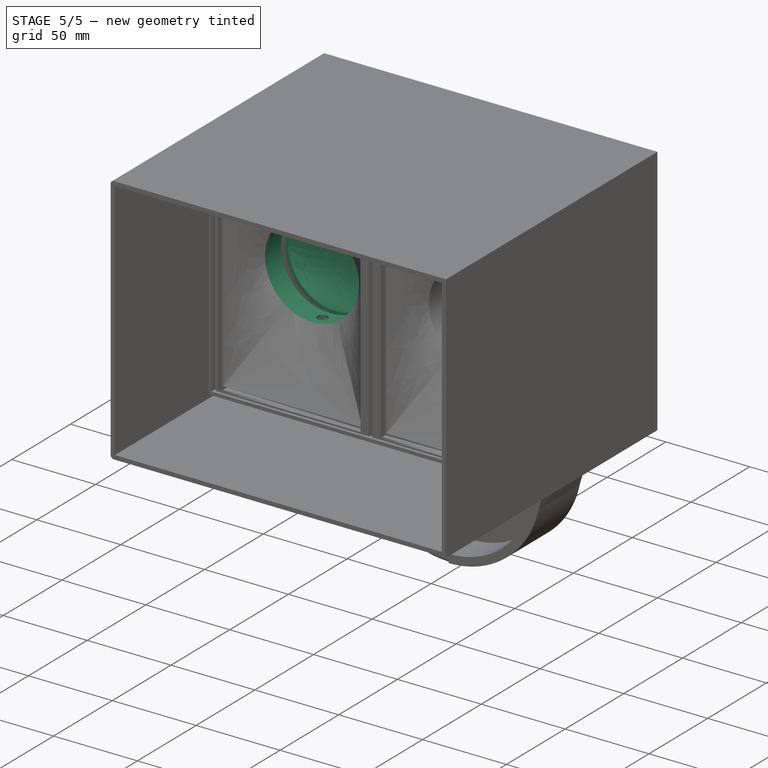
[diagram: stage 5 of 5 — iso view after this stage's code; geometry added in this stage tinted green]
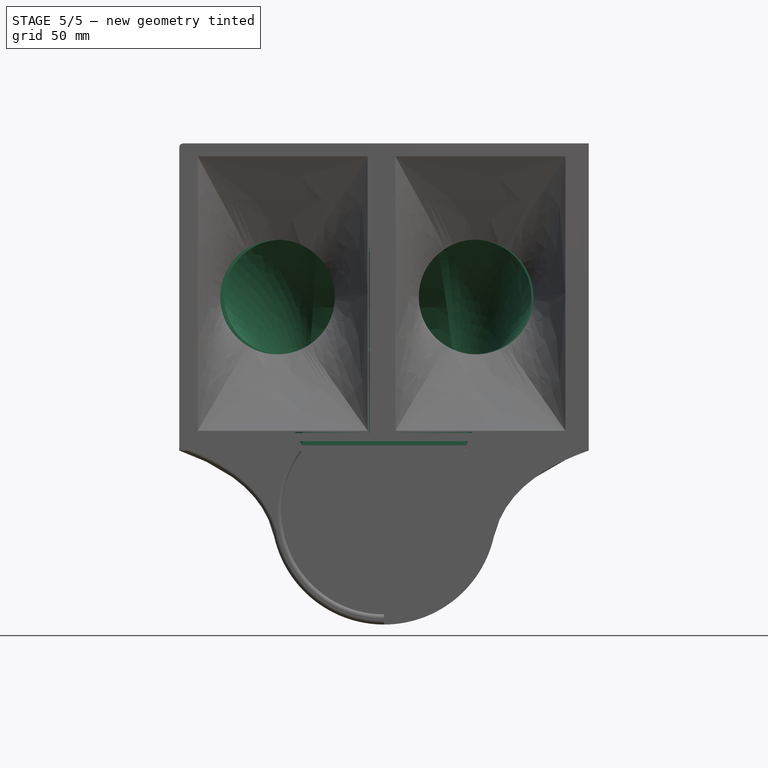
[diagram: stage 5 of 5 — front view after this stage's code; geometry added in this stage tinted green]
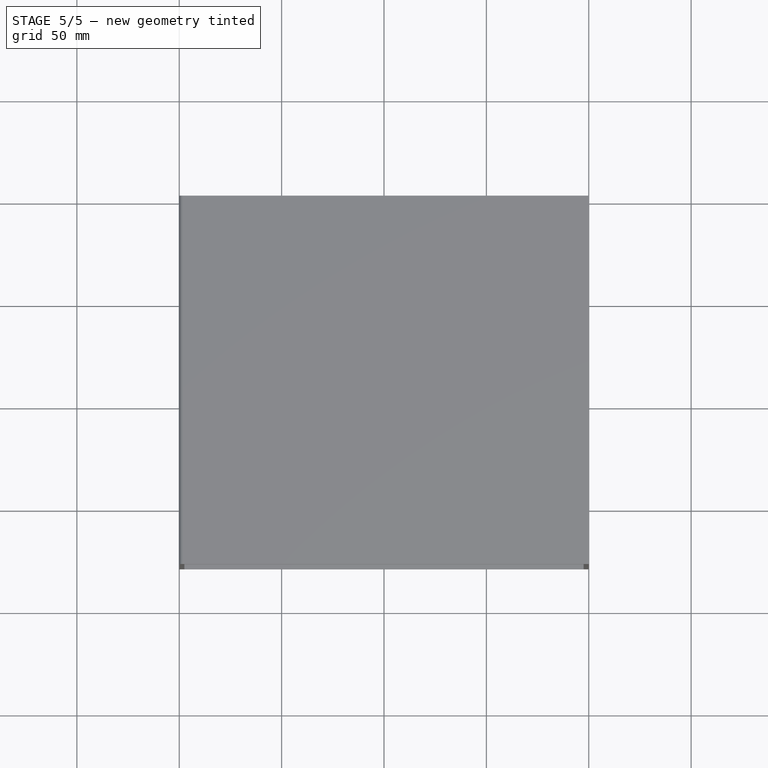
[diagram: stage 5 of 5 — top view after this stage's code; geometry added in this stage tinted green]
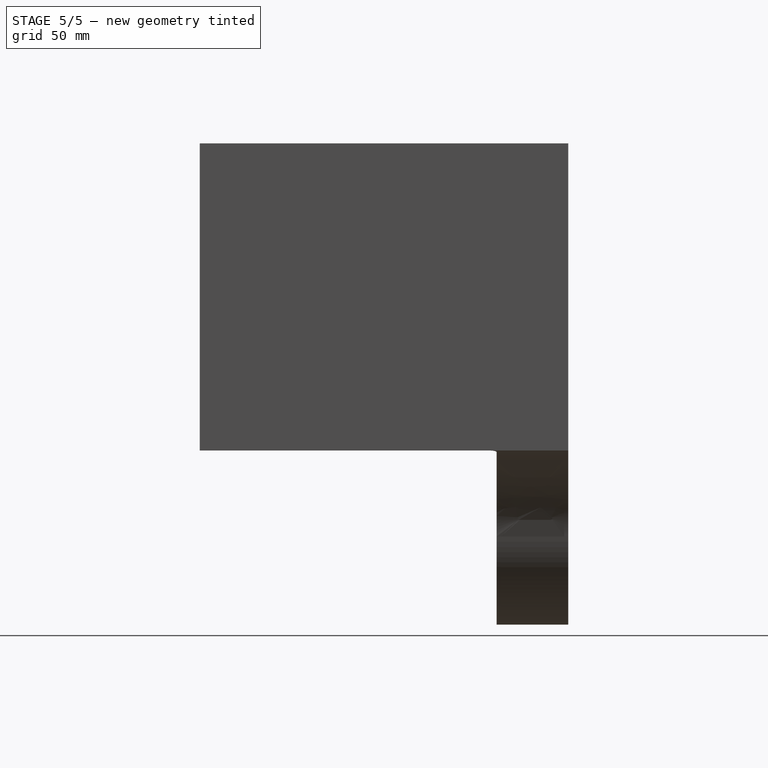
[diagram: stage 5 of 5 — right view after this stage's code; geometry added in this stage tinted green]
FEATURE [Part::Cut] Cut004  label="cilindro pestaña"
  Base = -> Extrude008
  Placement = pos=(48,-147,-75) rot=(1,0,0;1.5708rad)
  Tool = -> Extrude009
FEATURE [Part::Sweep] Sweep
  Frenet = false
  Sections = -> [Sketch004,Sketch008]
  Solid = true
  Spine = -> Sketch007 [Edge1]
  Transition = 1
FEATURE [Sketcher::SketchObject] Sketch024
  MapMode = 5
  Placement = pos=(0,0,0) rot=(1,0,0;1.5708rad)
  Support = -> [XZ_Plane]
  sketch-geometry (1):
    g0: LineSegment StartX=102.282 StartY=109.364 StartZ=0 EndX=102.282 EndY=-264.052 EndZ=0
  constraints (1):
    c: Vertical(g0)
FEATURE [PartDesign::Body] Body  label="body"
  Group = -> [Sketch,Sketch001,Sketch002,Sketch003,Sketch004,Sketch007,Sketch008,Sketch009,Sketch010,Sketch011,Sketch016,Sketch019,Sketch024]
  Origin = -> Origin
FEATURE [Sketcher::SketchObject] Sketch025  label="BoolComida001"
  AttachmentOffset = pos=(0,0,-147.5) rot=(0,0,1;0rad)
  MapMode = 5
  Placement = pos=(0,0,-147.5) rot=(0,0,1;0rad)
  Support = -> [XY_Plane004]
  sketch-geometry (4):
    g0: LineSegment StartX=61 StartY=-34 StartZ=0 EndX=139 EndY=-34 EndZ=0
    g1: LineSegment StartX=139 StartY=-34 StartZ=0 EndX=139 EndY=-16 EndZ=0
    g2: LineSegment StartX=139 StartY=-16 StartZ=0 EndX=61 EndY=-16 EndZ=0
    g3: LineSegment StartX=61 StartY=-16 StartZ=0 EndX=61 EndY=-34 EndZ=0
  constraints (12):
    c: Coincident(g0,g1)
    c: Coincident(g1,g2)
    c: Coincident(g2,g3)
    c: Coincident(g3,g0)
    c: Horizontal(g0)
    c: Horizontal(g2)
    c: Vertical(g1)
    c: Vertical(g3)
    c: DistanceY(g0,g-1) = 34
    c: DistanceX(g-1,g0) = 61
    c: DistanceX(g0,g0) = 78
    c: DistanceY(g3,g3) = 18
FEATURE [Sketcher::SketchObject] Sketch026  label="sweepLine001"
  MapMode = 5
  Placement = pos=(0,0,0) rot=(0.57735,0.57735,0.57735;2.0944rad)
  Support = -> [YZ_Plane002]
  sketch-geometry (6):
    g0: Circle [constr] CenterX=-59.3381 CenterY=-98.0609 CenterZ=0 NormalX=0 NormalY=0 NormalZ=1 AngleXU=0 Radius=6.7218
    g1: Circle [constr] CenterX=-31.2351 CenterY=-113.881 CenterZ=0 NormalX=0 NormalY=0 NormalZ=1 AngleXU=0 Radius=6.7218
    g2: Circle [constr] CenterX=-25.8169 CenterY=-145.399 CenterZ=0 NormalX=0 NormalY=0 NormalZ=1 AngleXU=0 Radius=6.65458
    g3: BSplineCurve PolesCount=3 KnotsCount=2 Degree=2 IsPeriodic=0
    g4: GeomPoint [constr] X=-59.3381 Y=-98.0609 Z=0
    g5: GeomPoint [constr] X=-25.8169 Y=-145.399 Z=0
  constraints (6):
    c: Equal(g0,g1)
    c: InternalAlignment(g0,g3)
    c: InternalAlignment(g1,g3)
    c: InternalAlignment(g2,g3)
    c: InternalAlignment(g4,g3)
    c: InternalAlignment(g5,g3)
FEATURE [Sketcher::SketchObject] Sketch027
  AttachmentOffset = pos=(0,-60,60) rot=(1,0,0;0rad)
  MapMode = 5
  Placement = pos=(0,-60,-60) rot=(1,0,0;1.5708rad)
  Support = -> [XZ_Plane007]
  sketch-geometry (4):
    g0: LineSegment StartX=67.4665 StartY=6.88426 StartZ=0 EndX=126.533 EndY=6.88426 EndZ=0
    g1: LineSegment StartX=130.653 StartY=-39.6144 StartZ=0 EndX=63.3466 EndY=-39.6144 EndZ=0
    g2: ArcOfCircle CenterX=50 CenterY=-15 CenterZ=0 NormalX=0 NormalY=0 NormalZ=1 AngleXU=0 Radius=28 StartAngle=0.897196 EndAngle=5.20924
    g3: ArcOfCircle CenterX=144 CenterY=-15 CenterZ=0 NormalX=0 NormalY=0 NormalZ=1 AngleXU=0 Radius=28 StartAngle=4.21553 EndAngle=8.52758
  constraints (12):
    c: Horizontal(g0)
    c: Horizontal(g1)
    c: Radius(g3) = 28
    c: Radius(g2) = 28
    c: Coincident(g2,g0)
    c: Coincident(g2,g1)
    c: Coincident(g0,g3)
    c: Coincident(g1,g3)
    c: DistanceY(g2,g-1) = 15
    c: DistanceX(g-1,g2) = 50
    c: DistanceX(g2,g3) = 94
    c: Horizontal(g2,g3)
FEATURE [Part::Sweep] Sweep001
  Frenet = false
  Sections = -> [Sketch025,Sketch027]
  Solid = true
  Spine = -> Sketch026 [Edge1]
  Transition = 1
FEATURE [Sketcher::SketchObject] Sketch021  label="cajonHold002"
  MapMode = 5
  Placement = pos=(0,0,0) rot=(1,0,0;1.5708rad)
  Support = -> [XZ_Plane006]
  sketch-geometry (12):
    g0: LineSegment StartX=2 StartY=-2 StartZ=0 EndX=196 EndY=-2 EndZ=0
    g1: LineSegment StartX=196 StartY=-2 StartZ=0 EndX=196 EndY=-146 EndZ=0
    g2: LineSegment StartX=196 StartY=-146 StartZ=0 EndX=2 EndY=-146 EndZ=0
    g3: LineSegment StartX=2 StartY=-146 StartZ=0 EndX=2 EndY=-2 EndZ=0
    g4: LineSegment StartX=8 StartY=-4.5 StartZ=0 EndX=95 EndY=-4.5 EndZ=0
    g5: LineSegment StartX=95 StartY=-4.5 StartZ=0 EndX=95 EndY=-142.5 EndZ=0
    g6: LineSegment StartX=95 StartY=-142.5 StartZ=0 EndX=8 EndY=-142.5 EndZ=0
    g7: LineSegment StartX=8 StartY=-142.5 StartZ=0 EndX=8 EndY=-4.5 EndZ=0
    g8: LineSegment StartX=103 StartY=-4.5 StartZ=0 EndX=190 EndY=-4.5 EndZ=0
    g9: LineSegment StartX=190 StartY=-4.5 StartZ=0 EndX=190 EndY=-142.5 EndZ=0
    g10: LineSegment StartX=190 StartY=-142.5 StartZ=0 EndX=103 EndY=-142.5 EndZ=0
    g11: LineSegment StartX=103 StartY=-142.5 StartZ=0 EndX=103 EndY=-4.5 EndZ=0
  constraints (36):
    c: Coincident(g0,g1)
    c: Coincident(g1,g2)
    c: Coincident(g2,g3)
    c: Coincident(g3,g0)
    c: Horizontal(g0)
    c: Horizontal(g2)
    c: Vertical(g1)
    c: Vertical(g3)
    c: DistanceX(g-1,g0) = 2
    c: DistanceY(g0,g-1) = 2
    c: DistanceX(g2,g2) = 194
    c: DistanceY(g3,g3) = 144
    c: Coincident(g4,g5)
    c: Coincident(g5,g6)
    c: Coincident(g6,g7)
    c: Coincident(g7,g4)
    c: Horizontal(g4)
    c: Horizontal(g6)
    c: Vertical(g5)
    c: Vertical(g7)
    c: Coincident(g8,g9)
    c: Coincident(g9,g10)
    c: Coincident(g10,g11)
    c: Coincident(g11,g8)
    c: Horizontal(g8)
    c: Horizontal(g10)
    c: Vertical(g9)
    c: Vertical(g11)
    c: DistanceX(g4,g4) = 87
    c: DistanceX(g8,g8) = 87
    c: DistanceY(g7,g7) = 138
    c: DistanceY(g9,g9) = 138
    c: DistanceX(g0,g4) = 6
    c: DistanceX(g8,g0) = 6
    c: DistanceY(g4,g0) = 2.5
    c: DistanceY(g8,g0) = 2.5
FEATURE [Part::Cut] Cut009
  Base = -> Sweep
  Tool = -> Sweep001
FEATURE [Part::MultiFuse] Fusion002
  Shapes = -> [Fusion001,Cut005,Cut004]
FEATURE [Part::FeaturePython] Connect  label="ConnectDONE"  # WARN: FeaturePython — macro-defined, semantics opaque (R4)
  Objects = -> [Fusion002]
  Tolerance = 0
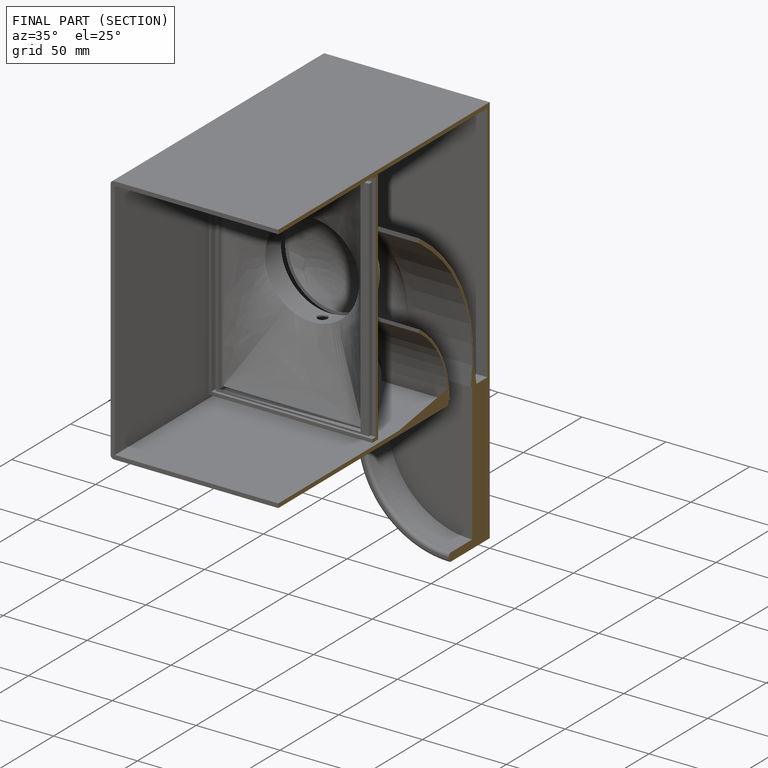
[diagram: finished part — half-section view (interior)]
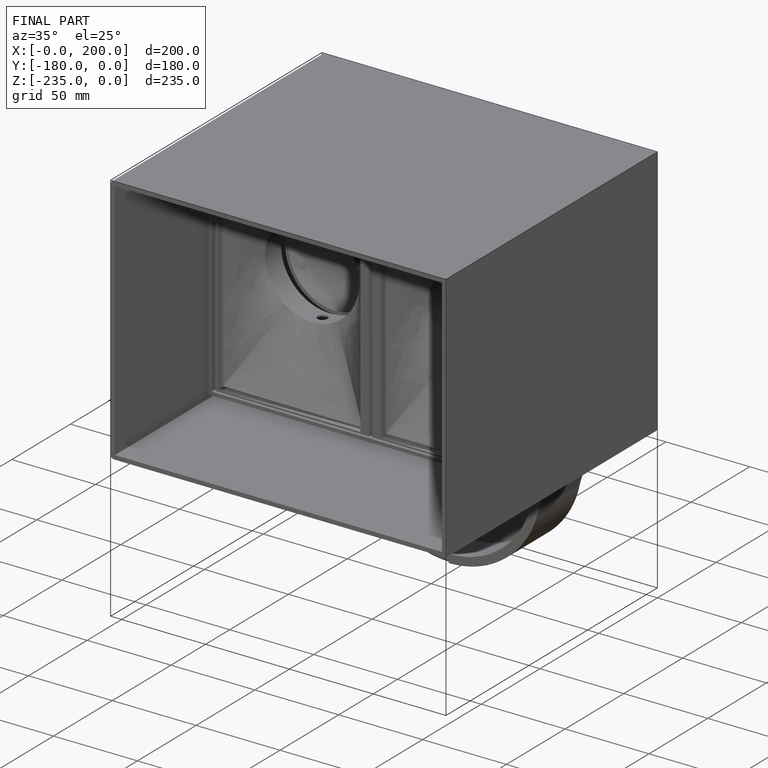
[diagram: finished part — iso view with bounding-box wireframe]
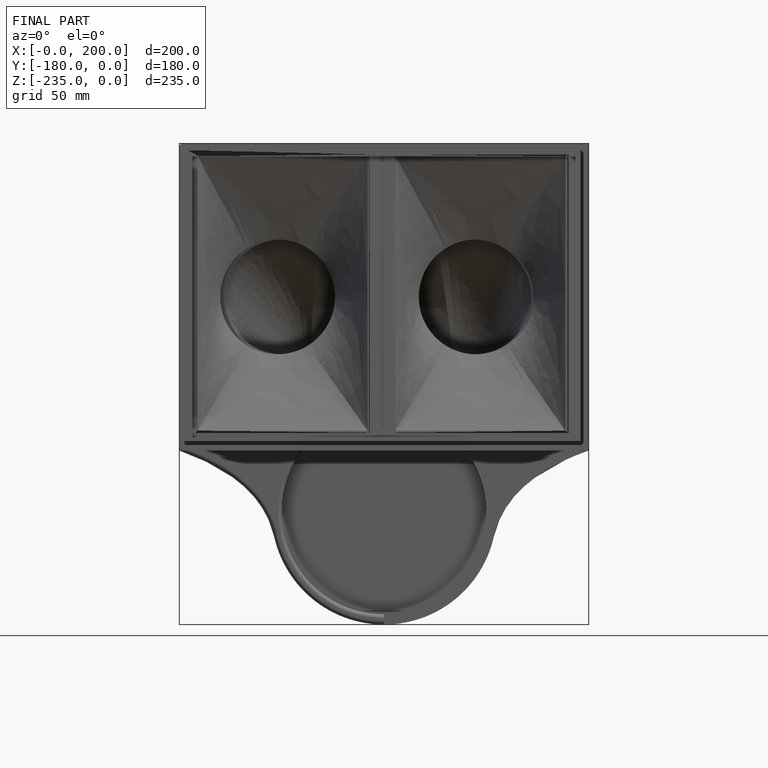
[diagram: finished part — front view with bounding-box wireframe]
